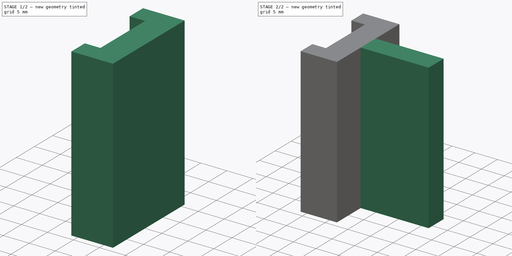
[diagram: build sequence overview — one tinted view per stage of 2, left to right]
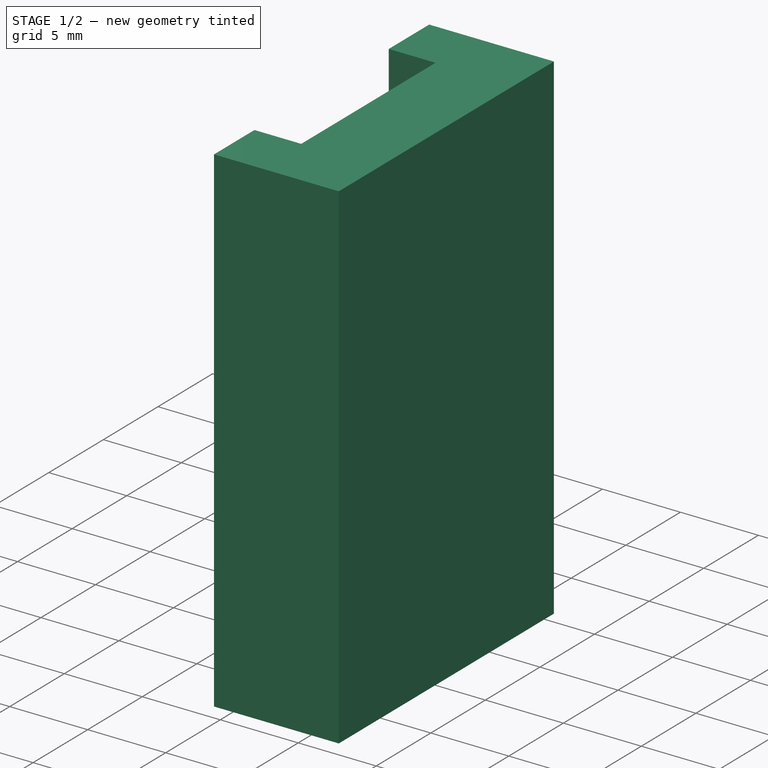
[diagram: stage 1 of 2 — iso view after this stage's code; geometry added in this stage tinted green]
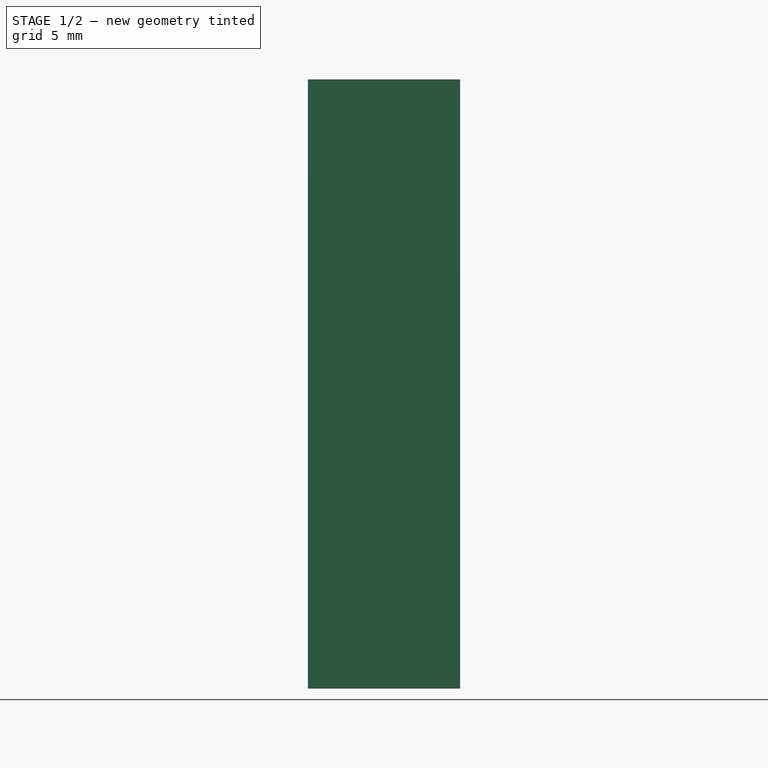
[diagram: stage 1 of 2 — front view after this stage's code; geometry added in this stage tinted green]
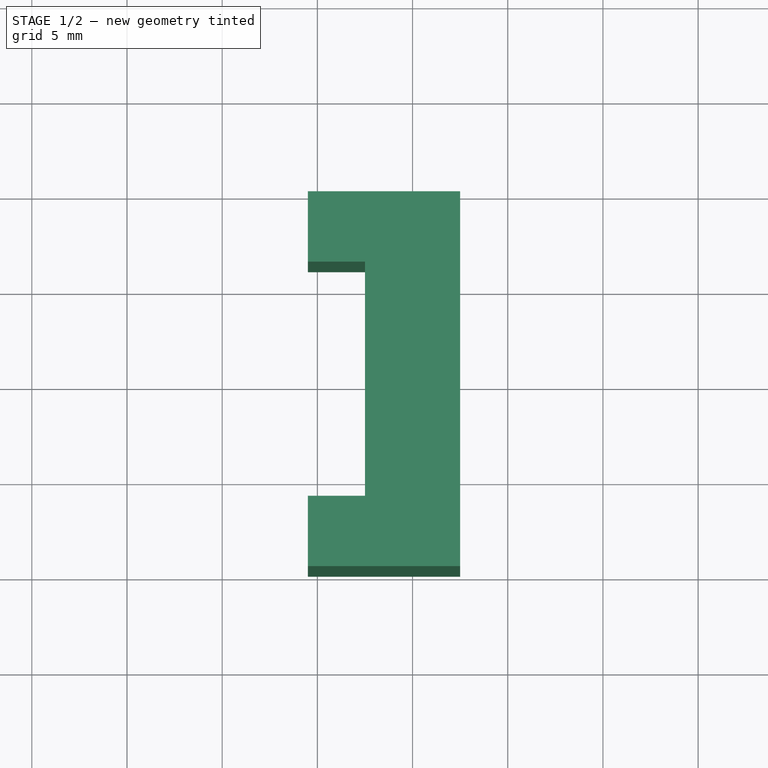
[diagram: stage 1 of 2 — top view after this stage's code; geometry added in this stage tinted green]
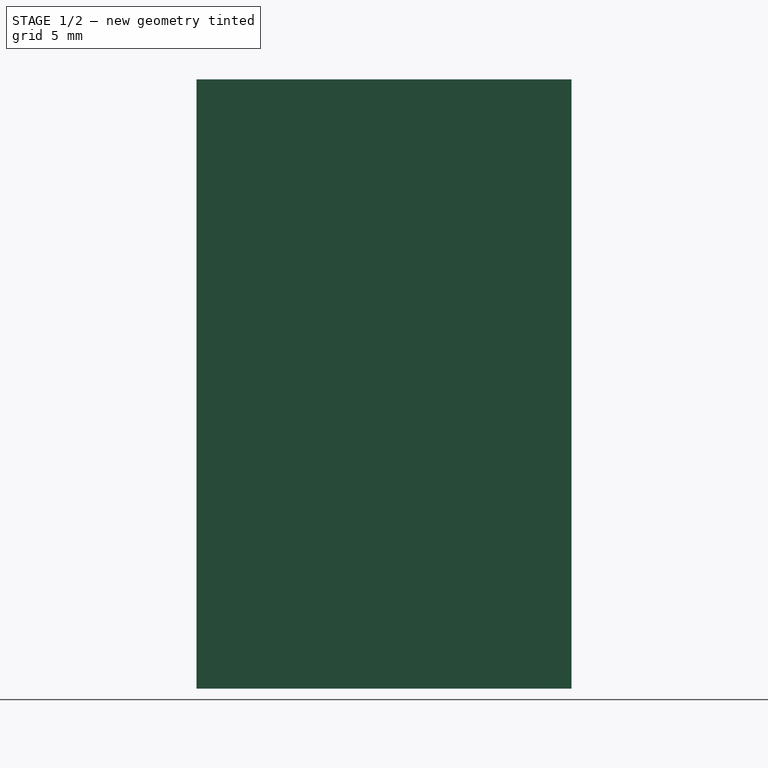
[diagram: stage 1 of 2 — right view after this stage's code; geometry added in this stage tinted green]
FCSTD DOCUMENT  (FreeCAD 0.21R33694 (Git))
Label: Spacer_A1
License: All rights reserved
LicenseURL: https://en.wikipedia.org/wiki/All_rights_reserved
objects: Sketcher::SketchObject×2, PartDesign::Pad×2, Spreadsheet::Sheet×1, PartDesign::Body×1
note: 7 computed .brp shape members not serialized (recipe doc carries the construction recipe); baked Part::Feature solids carry a one-line shape summary decoded from their .brp

FEATURE [Sketcher::SketchObject] Sketch005
  FullyConstrained = true
  MapMode = 5
  Support = -> [XY_Plane001]
  expr: Constraints[14] = 4 mm - Spreadsheet.tl
  expr: Constraints[22] = 4 mm - Spreadsheet.tl
  expr: Constraints[4] = 20 mm - Spreadsheet.tl
  sketch-geometry (10):
    g0: LineSegment StartX=-2.5 StartY=9.85 StartZ=0 EndX=2.5 EndY=9.85 EndZ=0
    g1: LineSegment StartX=2.5 StartY=9.85 StartZ=0 EndX=2.5 EndY=-9.85 EndZ=0
    g2: LineSegment StartX=2.5 StartY=-9.85 StartZ=0 EndX=-2.5 EndY=-9.85 EndZ=0
    g3: LineSegment StartX=-2.5 StartY=-6.15 StartZ=0 EndX=-2.5 EndY=6.15 EndZ=0
    g4: LineSegment StartX=-2.5 StartY=9.85 StartZ=0 EndX=-5.5 EndY=9.85 EndZ=0
    g5: LineSegment StartX=-5.5 StartY=9.85 StartZ=0 EndX=-5.5 EndY=6.15 EndZ=0
    g6: LineSegment StartX=-5.5 StartY=6.15 StartZ=0 EndX=-2.5 EndY=6.15 EndZ=0
    g7: LineSegment StartX=-2.5 StartY=-9.85 StartZ=0 EndX=-5.5 EndY=-9.85 EndZ=0
    g8: LineSegment StartX=-5.5 StartY=-9.85 StartZ=0 EndX=-5.5 EndY=-6.15 EndZ=0
    g9: LineSegment StartX=-5.5 StartY=-6.15 StartZ=0 EndX=-2.5 EndY=-6.15 EndZ=0
  constraints (28):
    c: Coincident(g0,g1)
    c: Coincident(g1,g2)
    c: Horizontal(g2)
    c: Vertical(g3)
    c: DistanceY(g2,g0) = 19.7
    c: DistanceX(g0,g0) = 5
    c: Symmetric(g0,g0,g-2)
    c: Symmetric(g1,g0,g-1)
    c: Coincident(g4,g5)
    c: Coincident(g5,g6)
    c: Horizontal(g4)
    c: Horizontal(g6)
    c: Vertical(g5)
    c: Coincident(g4,g0)
    c: DistanceY(g5,g5) = 3.7
    c: DistanceX(g6,g6) = 3
    c: Coincident(g7,g8)
    c: Coincident(g8,g9)
    c: Horizontal(g7)
    c: Horizontal(g9)
    c: Vertical(g8)
    c: Coincident(g7,g2)
    c: DistanceY(g8,g8) = 3.7
    c: DistanceX(g9,g9) = 3
    c: Coincident(g3,g6)
    c: Coincident(g9,g3)
    c: DistanceX(g4,g4) = 3
    c: DistanceX(g7,g7) = 3
FEATURE [PartDesign::Pad] Pad003
  Direction = (0,0,1)
  Length = 32
  Length2 = 10
  Profile = -> Sketch005
  ReferenceAxis = -> Sketch005 [N_Axis]
  Type = 0
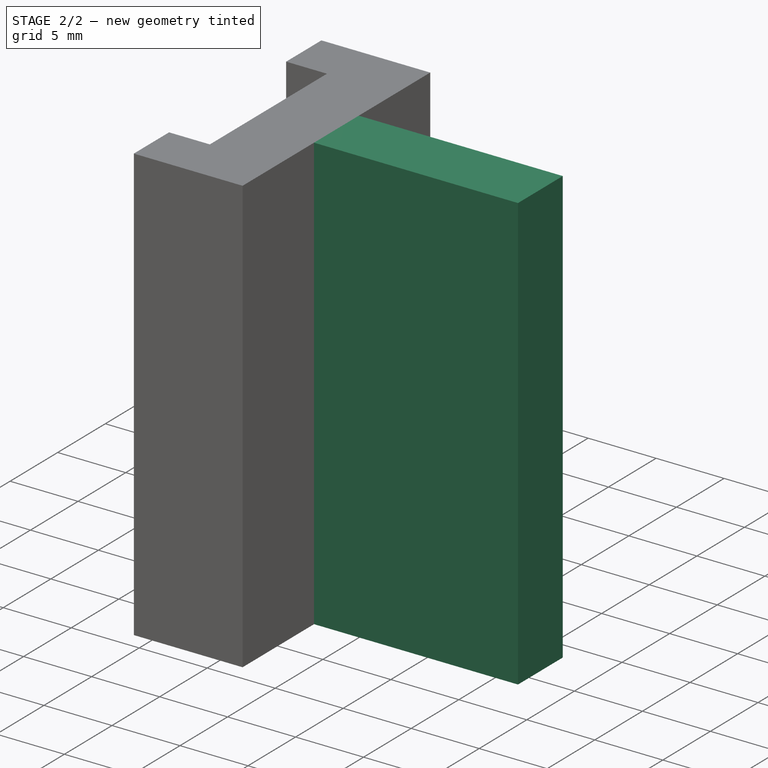
[diagram: stage 2 of 2 — iso view after this stage's code; geometry added in this stage tinted green]
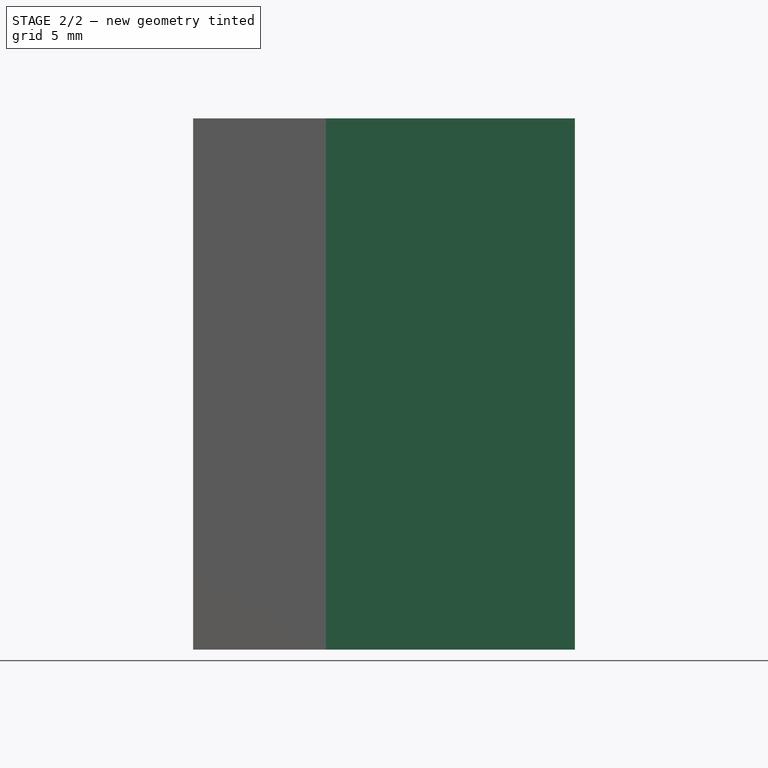
[diagram: stage 2 of 2 — front view after this stage's code; geometry added in this stage tinted green]
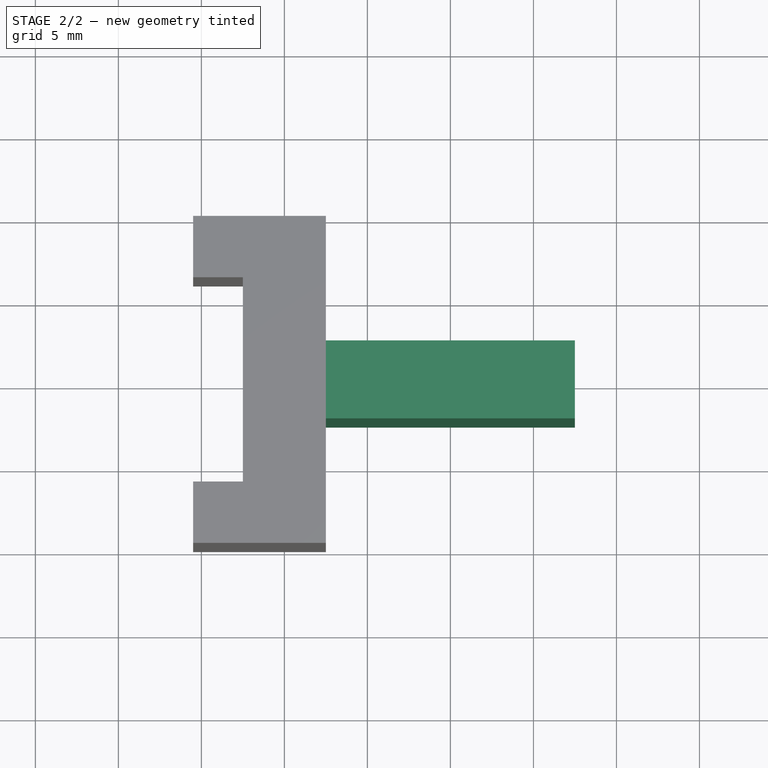
[diagram: stage 2 of 2 — top view after this stage's code; geometry added in this stage tinted green]
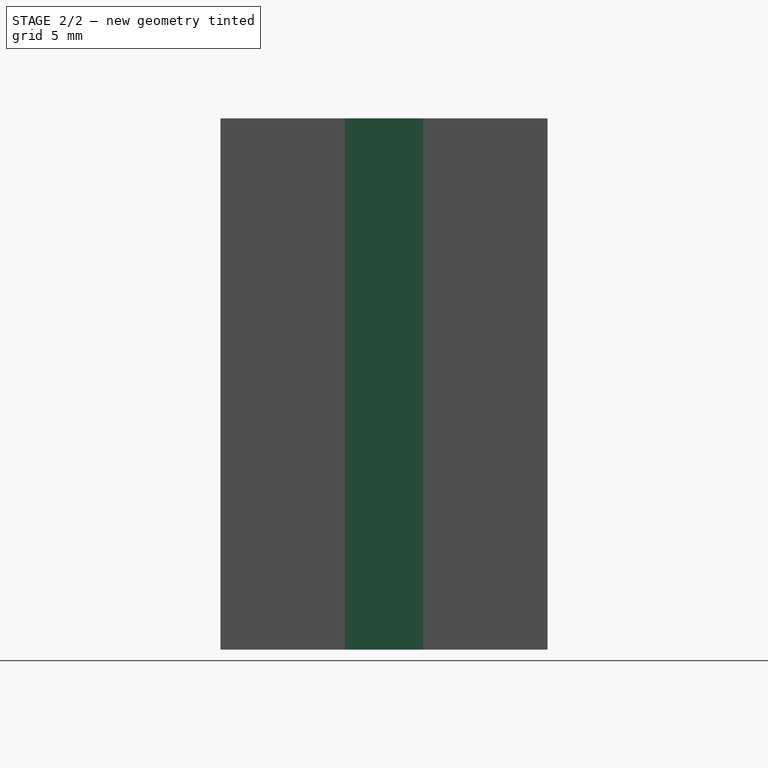
[diagram: stage 2 of 2 — right view after this stage's code; geometry added in this stage tinted green]
FEATURE [Spreadsheet::Sheet] Spreadsheet
  cells = A1='tollerance (mm); B1(tl)==0.3 mm
FEATURE [Sketcher::SketchObject] Sketch
  ExternalGeometry = -> [Pad003]
  FullyConstrained = true
  MapMode = 5
  Support = -> [XY_Plane001]
  expr: Constraints[8] = 5 mm - Spreadsheet.tl
  sketch-geometry (4):
    g0: LineSegment StartX=2.5 StartY=2.35 StartZ=0 EndX=17.5 EndY=2.35 EndZ=0
    g1: LineSegment StartX=17.5 StartY=2.35 StartZ=0 EndX=17.5 EndY=-2.35 EndZ=0
    g2: LineSegment StartX=17.5 StartY=-2.35 StartZ=0 EndX=2.5 EndY=-2.35 EndZ=0
    g3: LineSegment StartX=2.5 StartY=-2.35 StartZ=0 EndX=2.5 EndY=2.35 EndZ=0
  constraints (11):
    c: Coincident(g0,g1)
    c: Coincident(g1,g2)
    c: Coincident(g2,g3)
    c: Coincident(g3,g0)
    c: Horizontal(g0)
    c: Horizontal(g2)
    c: Vertical(g3)
    c: PointOnObject(g0,g-3)
    c: DistanceY(g1,g1) = 4.7
    c: Symmetric(g0,g1,g-1)
    c: DistanceX(g0,g0) = 15
FEATURE [PartDesign::Pad] Pad
  BaseFeature = -> Pad003
  Direction = (0,0,1)
  Length = 10
  Length2 = 10
  Profile = -> Sketch
  ReferenceAxis = -> Sketch [N_Axis]
  Type = 3
  UpToFace = -> Pad003 [Face12]
FEATURE [PartDesign::Body] Body001  label="Spacer"
  Group = -> [Sketch005,Pad003,Sketch,Pad]
  Origin = -> Origin001
  Tip = -> Pad
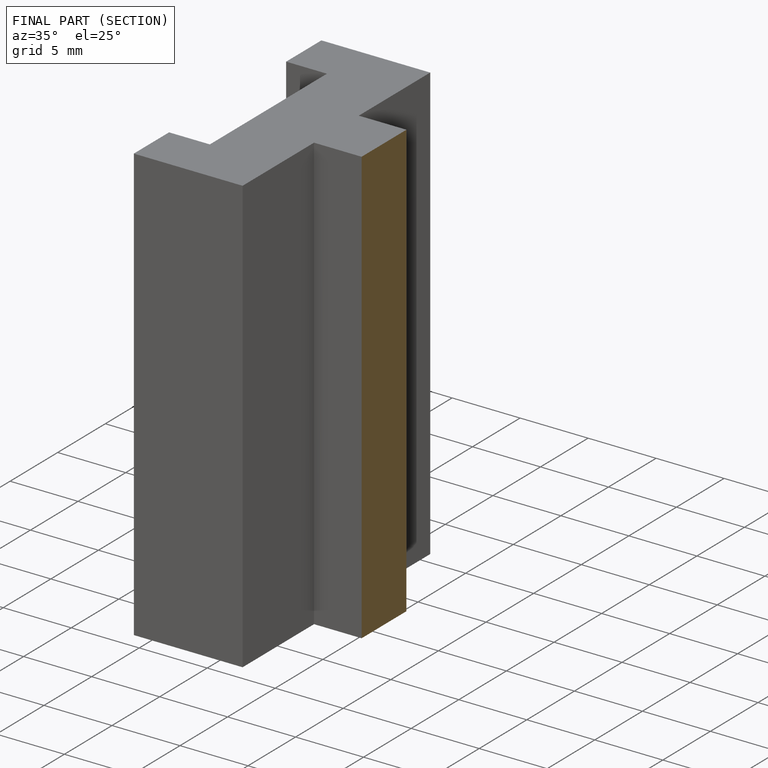
[diagram: finished part — half-section view (interior)]
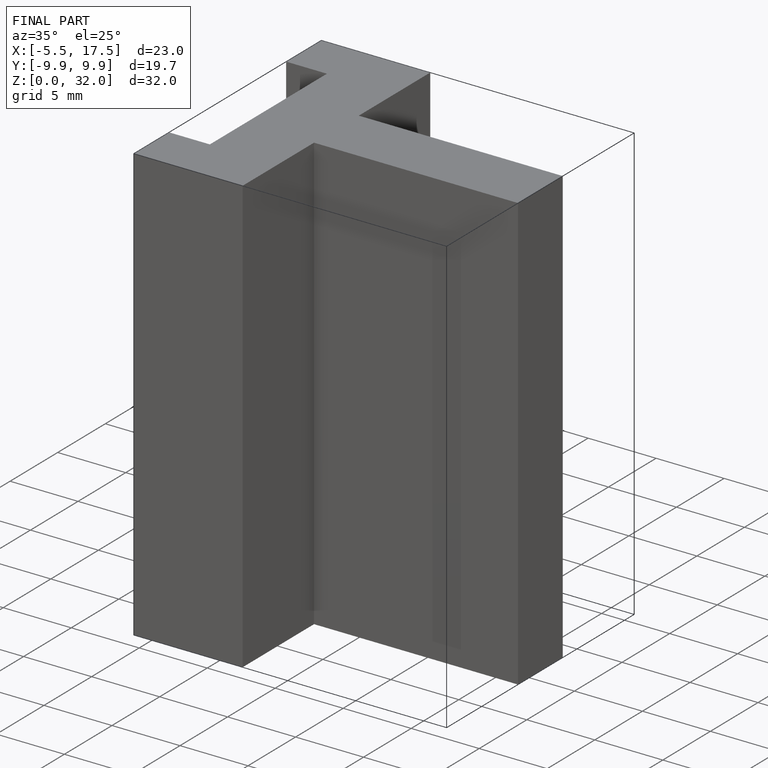
[diagram: finished part — iso view with bounding-box wireframe]
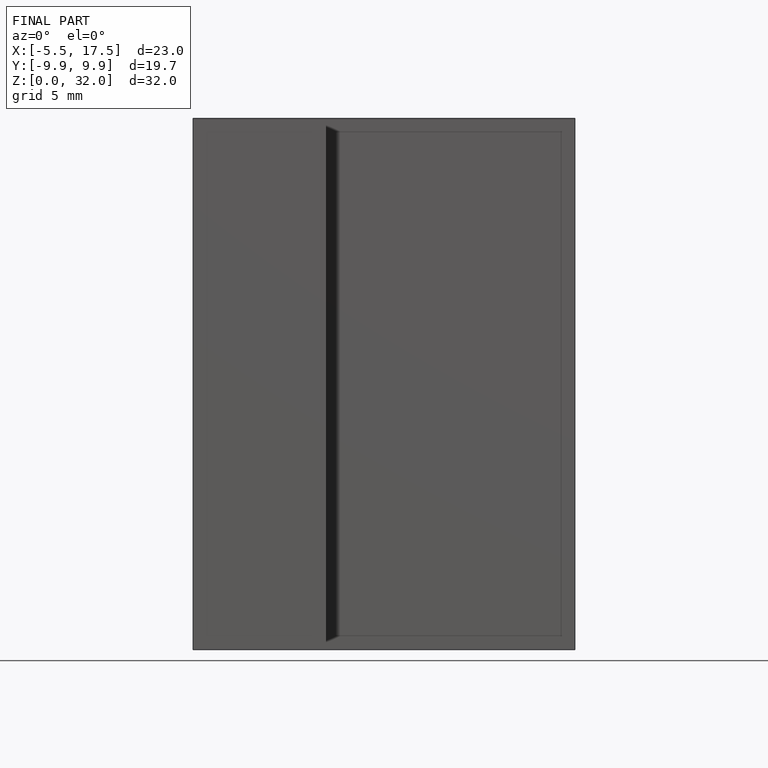
[diagram: finished part — front view with bounding-box wireframe]
